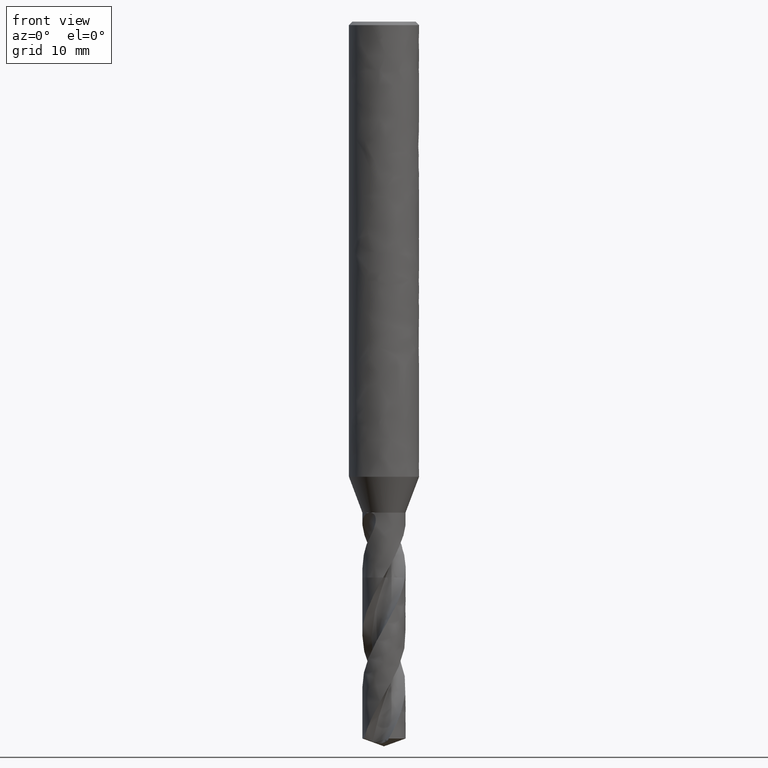
[diagram: clean part render]
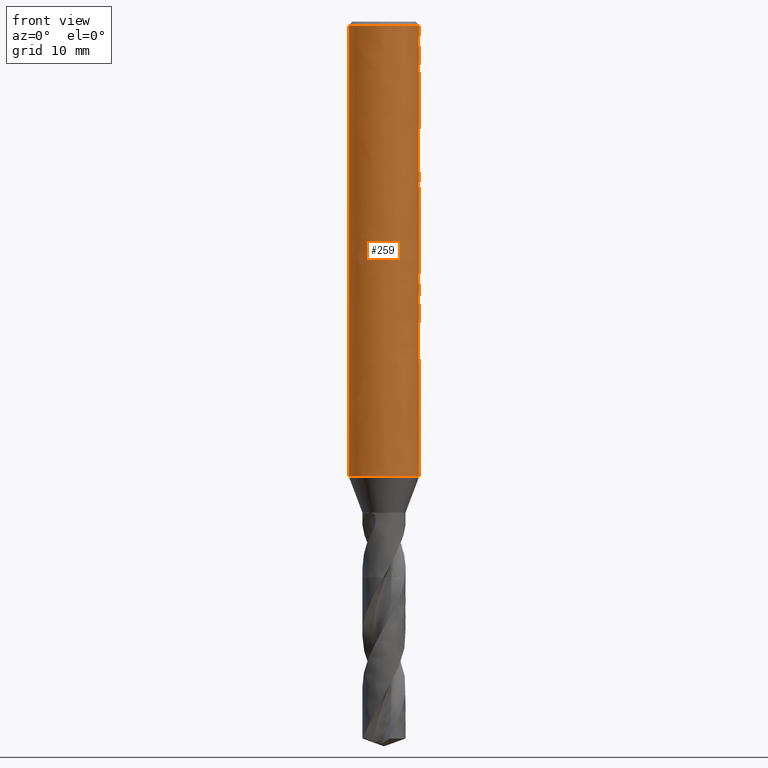
[diagram: same view with one face highlighted and labeled with its STEP entity id]
A machine part, front view. The second image highlights one B-rep face of the part: STEP entity #259.
In plain terms, the highlighted face is a freeform B-spline surface patch.
Its self-contained STEP definition (entity closure, byte-faithful):
#140 = VERTEX_POINT('', #141);
#141 = CARTESIAN_POINT('', (-3., 2.56783940845217E-15, -38.936));
#147 = EDGE_CURVE('', #140, #140, #148, .T.);
#148 = CIRCLE('', #149, 3.);
#149 = AXIS2_PLACEMENT_3D('', #150, #151, #152);
#150 = CARTESIAN_POINT('', (1.45986617244305E-31, 2.38414238858007E-15, -38.936));
#151 = DIRECTION('', (3.74939945665464E-33, 6.12323399573677E-17, -1.));
#152 = DIRECTION('', (-1., 6.12323399573677E-17, 0.));
#208 = VERTEX_POINT('', #209);
#209 = CARTESIAN_POINT('', (-3., 2.02066721859313E-16, -0.299999999999997));
#225 = EDGE_CURVE('', #208, #208, #226, .T.);
#226 = CIRCLE('', #227, 3.);
#227 = AXIS2_PLACEMENT_3D('', #228, #229, #230);
#228 = CARTESIAN_POINT('', (1.12481983699637E-33, 1.836970198721E-17, -0.299999999999997));
#229 = DIRECTION('', (3.74939945665464E-33, 6.12323399573677E-17, -1.));
#230 = DIRECTION('', (-1., 6.12323399573677E-17, 0.));
#259 = ADVANCED_FACE('', (#260, #271), #442, .T.);
#260 = FACE_OUTER_BOUND('', #261, .T.);
#261 = EDGE_LOOP('', (#262, #268, #269, #270));
#262 = ORIENTED_EDGE('', *, *, #263, .T.);
#263 = EDGE_CURVE('', #140, #208, #264, .T.);
#264 = LINE('', #265, #266);
#265 = CARTESIAN_POINT('', (-3., 2.56783940845217E-15, -38.936));
#266 = VECTOR('', #267, 38.636);
#267 = DIRECTION('', (0., -2.36577268659286E-15, 38.636));
#268 = ORIENTED_EDGE('', *, *, #225, .T.);
#269 = ORIENTED_EDGE('', *, *, #263, .F.);
#270 = ORIENTED_EDGE('', *, *, #147, .F.);
#271 = FACE_BOUND('', #272, .T.);
#272 = EDGE_LOOP('', (#273, #283, #361, #369));
#273 = ORIENTED_EDGE('', *, *, #274, .F.);
#274 = EDGE_CURVE('', #275, #277, #279, .T.);
#275 = VERTEX_POINT('', #276);
#276 = CARTESIAN_POINT('', (2.14242852856286, 2.1, -15.9));
#277 = VERTEX_POINT('', #278);
#278 = CARTESIAN_POINT('', (2.14242852856286, 2.1, -20.1));
#279 = LINE('', #280, #281);
#280 = CARTESIAN_POINT('', (2.14242852856286, 2.1, -15.9));
#281 = VECTOR('', #282, 4.2);
#282 = DIRECTION('', (0., 4.44089209850063E-16, -4.2));
#283 = ORIENTED_EDGE('', *, *, #284, .F.);
#284 = EDGE_CURVE('', #285, #275, #287, .T.);
#285 = VERTEX_POINT('', #286);
#286 = CARTESIAN_POINT('', (-2.14242852856285, 2.1, -15.9));
#287 = B_SPLINE_CURVE_WITH_KNOTS('', 3, (#288, #289, #290, #291, #292, #293, #294, #295, #296, #297, #298, #299, #300, #301, #302, #303, #304, #305, #306, #307, #308, #309, #310, #311, #312, #313, #314, #315, #316, #317, #318, #319, #320, #321, #322, #323, #324, #325, #326, #327, #328, #329, #330, #331, #332, #333, #334, #335, #336, #337, #338, #339, #340, #341, #342, #343, #344, #345, #346, #347, #348, #349, #350, #351, #352, #353, #354, #355, #356, #357, #358, #359, #360), .UNSPECIFIED., .F., .U., (4, 3, 3, 3, 3, 3, 3, 3, 3, 3, 3, 3, 3, 3, 3, 3, 3, 3, 3, 3, 3, 3, 3, 3, 4), (0., 0.226532141220106, 0.522486989651015, 0.818712617000362, 1.01613164123478, 1.21365653787485, 1.41130126070876, 1.60907935009336, 1.80700249001341, 2.00507870652317, 2.20331049885992, 2.40169339368014, 2.59896230886553, 2.79623122405091, 2.99461411887113, 3.19284591120788, 3.39092212771765, 3.5888452676377, 3.78662335702229, 3.98426807985621, 4.18179297649628, 4.37921200073069, 4.67543762808004, 4.97139247651095, 5.19792461773105), .UNSPECIFIED.);
#288 = CARTESIAN_POINT('', (-2.14242852856285, 2.1, -15.9));
#289 = CARTESIAN_POINT('', (-2.09966946167759, 2.14362297369035, -15.8556089394693));
#290 = CARTESIAN_POINT('', (-2.05511554936735, 2.1864112283916, -15.8120672951529));
#291 = CARTESIAN_POINT('', (-2.0087677833036, 2.22819478339795, -15.7695480406737));
#292 = CARTESIAN_POINT('', (-1.94821634893922, 2.28278326528933, -15.71399839793));
#293 = CARTESIAN_POINT('', (-1.88451279376244, 2.33573606973675, -15.6601132326456));
#294 = CARTESIAN_POINT('', (-1.81770907332823, 2.38661553768947, -15.6083379099064));
#295 = CARTESIAN_POINT('', (-1.75084423195188, 2.43754155695696, -15.5565152162052));
#296 = CARTESIAN_POINT('', (-1.6807436866328, 2.48648668451198, -15.5067082925553));
#297 = CARTESIAN_POINT('', (-1.60754910566601, 2.53294016369761, -15.4594368887067));
#298 = CARTESIAN_POINT('', (-1.5587687118729, 2.56389899941747, -15.4279329486004));
#299 = CARTESIAN_POINT('', (-1.5085561938224, 2.59378846644904, -15.3975172059771));
#300 = CARTESIAN_POINT('', (-1.45698599487322, 2.6224400490275, -15.3683611437249));
#301 = CARTESIAN_POINT('', (-1.40538813971894, 2.65110699695379, -15.3391894455811));
#302 = CARTESIAN_POINT('', (-1.35237136818211, 2.67856731294511, -15.311245625015));
#303 = CARTESIAN_POINT('', (-1.29804490816719, 2.7046403488045, -15.2847135109673));
#304 = CARTESIAN_POINT('', (-1.24368549163368, 2.7307292015695, -15.2581653015195));
#305 = CARTESIAN_POINT('', (-1.18794354651529, 2.75546251726231, -15.2329964966177));
#306 = CARTESIAN_POINT('', (-1.13097137564117, 2.77865142604832, -15.2093992916021));
#307 = CARTESIAN_POINT('', (-1.07396076113039, 2.80185598222798, -15.1857861636831));
#308 = CARTESIAN_POINT('', (-1.01563414958426, 2.82354738172838, -15.1637128351876));
#309 = CARTESIAN_POINT('', (-0.95619479969747, 2.84353503671602, -15.143373249704));
#310 = CARTESIAN_POINT('', (-0.89671185696602, 2.86353735065839, -15.1230187471597));
#311 = CARTESIAN_POINT('', (-0.836016614422421, 2.88186535336629, -15.1043680361057));
#312 = CARTESIAN_POINT('', (-0.774369168024389, 2.89833614192924, -15.087607239896));
#313 = CARTESIAN_POINT('', (-0.71267404260882, 2.91481966923584, -15.0708334806465));
#314 = CARTESIAN_POINT('', (-0.64991330506456, 2.92947198918526, -15.0559231715418));
#315 = CARTESIAN_POINT('', (-0.586405693294023, 2.94212990244693, -15.0430423854271));
#316 = CARTESIAN_POINT('', (-0.522848200475703, 2.95479775766609, -15.030151482303));
#317 = CARTESIAN_POINT('', (-0.458417641638556, 2.96549204170255, -15.0192688998049));
#318 = CARTESIAN_POINT('', (-0.393487032405311, 2.97408270821927, -15.010526974047));
#319 = CARTESIAN_POINT('', (-0.32850692971699, 2.98267992298454, -15.0017783847429));
#320 = CARTESIAN_POINT('', (-0.262890170542842, 2.98918754384691, -14.9951561816426));
#321 = CARTESIAN_POINT('', (-0.197052250671389, 2.99352140638837, -14.9907460110803));
#322 = CARTESIAN_POINT('', (-0.131584030526332, 2.99783093298788, -14.9863606049525));
#323 = CARTESIAN_POINT('', (-0.0657563050617958, 3., -14.9841533463251));
#324 = CARTESIAN_POINT('', (9.18485099360515E-17, 3., -14.9841533463251));
#325 = CARTESIAN_POINT('', (0.0657563050617961, 3., -14.9841533463251));
#326 = CARTESIAN_POINT('', (0.131584030526332, 2.99783093298788, -14.9863606049525));
#327 = CARTESIAN_POINT('', (0.197052250671389, 2.99352140638837, -14.9907460110803));
#328 = CARTESIAN_POINT('', (0.262890170542842, 2.98918754384691, -14.9951561816426));
#329 = CARTESIAN_POINT('', (0.328506929716991, 2.98267992298454, -15.0017783847429));
#330 = CARTESIAN_POINT('', (0.393487032405312, 2.97408270821927, -15.010526974047));
#331 = CARTESIAN_POINT('', (0.458417641638557, 2.96549204170255, -15.0192688998049));
#332 = CARTESIAN_POINT('', (0.522848200475705, 2.95479775766609, -15.030151482303));
#333 = CARTESIAN_POINT('', (0.586405693294026, 2.94212990244693, -15.0430423854271));
#334 = CARTESIAN_POINT('', (0.649913305064562, 2.92947198918526, -15.0559231715418));
#335 = CARTESIAN_POINT('', (0.712674042608824, 2.91481966923584, -15.0708334806465));
#336 = CARTESIAN_POINT('', (0.774369168024393, 2.89833614192924, -15.087607239896));
#337 = CARTESIAN_POINT('', (0.836016614422424, 2.88186535336629, -15.1043680361057));
#338 = CARTESIAN_POINT('', (0.896711856966021, 2.86353735065839, -15.1230187471597));
#339 = CARTESIAN_POINT('', (0.95619479969747, 2.84353503671602, -15.143373249704));
#340 = CARTESIAN_POINT('', (1.01563414958426, 2.82354738172838, -15.1637128351876));
#341 = CARTESIAN_POINT('', (1.07396076113039, 2.80185598222798, -15.1857861636831));
#342 = CARTESIAN_POINT('', (1.13097137564117, 2.77865142604832, -15.2093992916021));
#343 = CARTESIAN_POINT('', (1.18794354651529, 2.75546251726231, -15.2329964966177));
#344 = CARTESIAN_POINT('', (1.24368549163368, 2.7307292015695, -15.2581653015195));
#345 = CARTESIAN_POINT('', (1.29804490816719, 2.7046403488045, -15.2847135109673));
#346 = CARTESIAN_POINT('', (1.35237136818211, 2.67856731294511, -15.311245625015));
#347 = CARTESIAN_POINT('', (1.40538813971894, 2.65110699695379, -15.3391894455812));
#348 = CARTESIAN_POINT('', (1.45698599487322, 2.6224400490275, -15.3683611437249));
#349 = CARTESIAN_POINT('', (1.5085561938224, 2.59378846644904, -15.3975172059771));
#350 = CARTESIAN_POINT('', (1.55876871187291, 2.56389899941746, -15.4279329486004));
#351 = CARTESIAN_POINT('', (1.60754910566601, 2.53294016369761, -15.4594368887067));
#352 = CARTESIAN_POINT('', (1.6807436866328, 2.48648668451198, -15.5067082925553));
#353 = CARTESIAN_POINT('', (1.75084423195188, 2.43754155695695, -15.5565152162052));
#354 = CARTESIAN_POINT('', (1.81770907332824, 2.38661553768947, -15.6083379099064));
#355 = CARTESIAN_POINT('', (1.88451279376245, 2.33573606973674, -15.6601132326456));
#356 = CARTESIAN_POINT('', (1.94821634893922, 2.28278326528933, -15.71399839793));
#357 = CARTESIAN_POINT('', (2.0087677833036, 2.22819478339795, -15.7695480406738));
#358 = CARTESIAN_POINT('', (2.05511554936736, 2.1864112283916, -15.8120672951529));
#359 = CARTESIAN_POINT('', (2.09966946167759, 2.14362297369034, -15.8556089394693));
#360 = CARTESIAN_POINT('', (2.14242852856286, 2.1, -15.9));
#361 = ORIENTED_EDGE('', *, *, #362, .T.);
#362 = EDGE_CURVE('', #285, #363, #365, .T.);
#363 = VERTEX_POINT('', #364);
#364 = CARTESIAN_POINT('', (-2.14242852856285, 2.1, -20.1));
#365 = LINE('', #366, #367);
#366 = CARTESIAN_POINT('', (-2.14242852856285, 2.1, -15.9));
#367 = VECTOR('', #368, 4.2);
#368 = DIRECTION('', (0., 0., -4.2));
#369 = ORIENTED_EDGE('', *, *, #370, .T.);
#370 = EDGE_CURVE('', #363, #277, #371, .T.);
#371 = B_SPLINE_CURVE_WITH_KNOTS('', 3, (#372, #373, #374, #375, #376, #377, #378, #379, #380, #381, #382, #383, #384, #385, #386, #387, #388, #389, #390, #391, #392, #393, #394, #395, #396, #397, #398, #399, #400, #401, #402, #403, #404, #405, #406, #407, #408, #409, #410, #411, #412, #413, #414, #415, #416, #417, #418, #419, #420, #421, #422, #423, #424, #425, #426, #427, #428, #429, #430, #431, #432, #433, #434, #435, #436, #437, #438, #439, #440, #441), .UNSPECIFIED., .F., .U., (4, 3, 3, 3, 3, 3, 3, 3, 3, 3, 3, 3, 3, 3, 3, 3, 3, 3, 3, 3, 3, 3, 3, 4), (0., 0.29566074741977, 0.591176839852676, 0.886518626925896, 1.18164841836716, 1.47652016794506, 1.67307726230278, 1.86952243409268, 2.06584587187348, 2.26204020012183, 2.39294997035299, 2.5987955185311, 2.79606443371649, 2.99444732853671, 3.19267912087345, 3.39075533738322, 3.58867847730327, 3.78645656668786, 3.98410128952178, 4.18162618616185, 4.37904521039627, 4.67527083774562, 4.97122568617652, 5.19775782739663), .UNSPECIFIED.);
#372 = CARTESIAN_POINT('', (-2.14242852856285, 2.1, -20.1));
#373 = CARTESIAN_POINT('', (-2.08662109388193, 2.15693497150777, -20.157937447925));
#374 = CARTESIAN_POINT('', (-2.02774367313634, 2.21245994000831, -20.2144400663657));
#375 = CARTESIAN_POINT('', (-1.96580397010841, 2.26618947820047, -20.269115641651));
#376 = CARTESIAN_POINT('', (-1.90389457170158, 2.31989272867704, -20.3237644663626));
#377 = CARTESIAN_POINT('', (-1.83882161539949, 2.371890809005, -20.3766780973248));
#378 = CARTESIAN_POINT('', (-1.77065397516674, 2.42173171516323, -20.4273965719039));
#379 = CARTESIAN_POINT('', (-1.70252654250763, 2.47154322347377, -20.4780851310158));
#380 = CARTESIAN_POINT('', (-1.63117078258686, 2.51929762113425, -20.5266803591222));
#381 = CARTESIAN_POINT('', (-1.55675381487312, 2.56447217958794, -20.572650323779));
#382 = CARTESIAN_POINT('', (-1.48239026348173, 2.60961431185107, -20.6185872913044));
#383 = CARTESIAN_POINT('', (-1.40478985624159, 2.6522855246488, -20.6620098329141));
#384 = CARTESIAN_POINT('', (-1.32426732289553, 2.69189822569708, -20.7023200103564));
#385 = CARTESIAN_POINT('', (-1.24381519309784, 2.73147629203384, -20.7425949432603));
#386 = CARTESIAN_POINT('', (-1.16021288035591, 2.76811040114363, -20.7798740835253));
#387 = CARTESIAN_POINT('', (-1.07398043712975, 2.80117225829876, -20.8135180737918));
#388 = CARTESIAN_POINT('', (-1.01649918128153, 2.82321079737816, -20.8359446540893));
#389 = CARTESIAN_POINT('', (-0.957748596561568, 2.84370285567261, -20.856797524107));
#390 = CARTESIAN_POINT('', (-0.897945836518629, 2.86246279882885, -20.8758877809545));
#391 = CARTESIAN_POINT('', (-0.838177129067324, 2.88121205979111, -20.8949671675225));
#392 = CARTESIAN_POINT('', (-0.777257254947386, 2.89826163823775, -20.9123169445968));
#393 = CARTESIAN_POINT('', (-0.715458762567487, 2.91343761887321, -20.9277601346871));
#394 = CARTESIAN_POINT('', (-0.653698565749474, 2.92860419519017, -20.9431937548733));
#395 = CARTESIAN_POINT('', (-0.590947680355501, 2.94192632660259, -20.9567504542887));
#396 = CARTESIAN_POINT('', (-0.527533495262699, 2.9532538684265, -20.9682774445929));
#397 = CARTESIAN_POINT('', (-0.46416101367652, 2.96457396084119, -20.9797968543232));
#398 = CARTESIAN_POINT('', (-0.400001379736572, 2.97392352783086, -20.989311042813));
#399 = CARTESIAN_POINT('', (-0.335429955765133, 2.98118881400953, -20.9967042517405));
#400 = CARTESIAN_POINT('', (-0.292344967778633, 2.9860365430586, -21.0016373366599));
#401 = CARTESIAN_POINT('', (-0.249027925527354, 2.98996321515988, -21.0056331472199));
#402 = CARTESIAN_POINT('', (-0.20559941433194, 2.99294652154468, -21.0086689818526));
#403 = CARTESIAN_POINT('', (-0.137311419648321, 2.99763754145158, -21.0134425983904));
#404 = CARTESIAN_POINT('', (-0.0686151827260356, 3., -21.0158466536749));
#405 = CARTESIAN_POINT('', (9.18485099360516E-17, 3., -21.0158466536749));
#406 = CARTESIAN_POINT('', (0.065756305061796, 3., -21.0158466536749));
#407 = CARTESIAN_POINT('', (0.131584030526332, 2.99783093298788, -21.0136393950475));
#408 = CARTESIAN_POINT('', (0.197052250671389, 2.99352140638837, -21.0092539889197));
#409 = CARTESIAN_POINT('', (0.262890170542842, 2.98918754384691, -21.0048438183574));
#410 = CARTESIAN_POINT('', (0.328506929716991, 2.98267992298454, -20.9982216152571));
#411 = CARTESIAN_POINT('', (0.393487032405312, 2.97408270821927, -20.989473025953));
#412 = CARTESIAN_POINT('', (0.458417641638557, 2.96549204170255, -20.9807311001951));
#413 = CARTESIAN_POINT('', (0.522848200475705, 2.95479775766609, -20.969848517697));
#414 = CARTESIAN_POINT('', (0.586405693294025, 2.94212990244693, -20.9569576145729));
#415 = CARTESIAN_POINT('', (0.649913305064562, 2.92947198918526, -20.9440768284582));
#416 = CARTESIAN_POINT('', (0.712674042608821, 2.91481966923584, -20.9291665193535));
#417 = CARTESIAN_POINT('', (0.774369168024391, 2.89833614192924, -20.912392760104));
#418 = CARTESIAN_POINT('', (0.836016614422422, 2.88186535336629, -20.8956319638943));
#419 = CARTESIAN_POINT('', (0.89671185696602, 2.86353735065839, -20.8769812528403));
#420 = CARTESIAN_POINT('', (0.956194799697469, 2.84353503671602, -20.856626750296));
#421 = CARTESIAN_POINT('', (1.01563414958426, 2.82354738172838, -20.8362871648124));
#422 = CARTESIAN_POINT('', (1.07396076113039, 2.80185598222798, -20.8142138363169));
#423 = CARTESIAN_POINT('', (1.13097137564117, 2.77865142604833, -20.7906007083979));
#424 = CARTESIAN_POINT('', (1.18794354651529, 2.75546251726231, -20.7670035033823));
#425 = CARTESIAN_POINT('', (1.24368549163368, 2.7307292015695, -20.7418346984805));
#426 = CARTESIAN_POINT('', (1.29804490816719, 2.7046403488045, -20.7152864890327));
#427 = CARTESIAN_POINT('', (1.35237136818211, 2.67856731294511, -20.688754374985));
#428 = CARTESIAN_POINT('', (1.40538813971895, 2.65110699695379, -20.6608105544189));
#429 = CARTESIAN_POINT('', (1.45698599487322, 2.6224400490275, -20.6316388562751));
#430 = CARTESIAN_POINT('', (1.5085561938224, 2.59378846644904, -20.6024827940229));
#431 = CARTESIAN_POINT('', (1.55876871187291, 2.56389899941746, -20.5720670513996));
#432 = CARTESIAN_POINT('', (1.60754910566601, 2.53294016369761, -20.5405631112933));
#433 = CARTESIAN_POINT('', (1.6807436866328, 2.48648668451198, -20.4932917074447));
#434 = CARTESIAN_POINT('', (1.75084423195188, 2.43754155695696, -20.4434847837948));
#435 = CARTESIAN_POINT('', (1.81770907332823, 2.38661553768947, -20.3916620900936));
#436 = CARTESIAN_POINT('', (1.88451279376245, 2.33573606973675, -20.3398867673544));
#437 = CARTESIAN_POINT('', (1.94821634893922, 2.28278326528933, -20.28600160207));
#438 = CARTESIAN_POINT('', (2.0087677833036, 2.22819478339795, -20.2304519593262));
#439 = CARTESIAN_POINT('', (2.05511554936736, 2.1864112283916, -20.1879327048471));
#440 = CARTESIAN_POINT('', (2.09966946167759, 2.14362297369034, -20.1443910605307));
#441 = CARTESIAN_POINT('', (2.14242852856286, 2.1, -20.1));
#442 = (
   BOUNDED_SURFACE ()
   B_SPLINE_SURFACE (1, 2, ((#443, #444, #445, #446, #447, #448, #449, #450, #451), (#452, #453, #454, #455, #456, #457, #458, #459, #460)), .UNSPECIFIED., .F., .T., .U.)
   B_SPLINE_SURFACE_WITH_KNOTS ((2, 2), (3, 2, 2, 2, 3), (0., 1.), (0., 4.71238898038469, 9.42477796076938, 14.1371669411541, 18.8495559215388), .UNSPECIFIED.)
   GEOMETRIC_REPRESENTATION_ITEM ()
   RATIONAL_B_SPLINE_SURFACE (((1., 0.707106781186548, 1., 0.707106781186548, 1., 0.707106781186548, 1., 0.707106781186548, 1.), (1., 0.707106781186548, 1., 0.707106781186548, 1., 0.707106781186548, 1., 0.707106781186548, 1.)))
   REPRESENTATION_ITEM ('')
   SURFACE ()
);
#443 = CARTESIAN_POINT('', (-3., 2.56783940845217E-15, -38.936));
#444 = CARTESIAN_POINT('', (-3., 3., -38.936));
#445 = CARTESIAN_POINT('', (1.23259516440783E-31, 3., -38.936));
#446 = CARTESIAN_POINT('', (3., 3., -38.936));
#447 = CARTESIAN_POINT('', (3., 2.56783940845217E-15, -38.936));
#448 = CARTESIAN_POINT('', (3., -3., -38.936));
#449 = CARTESIAN_POINT('', (3.67394039744206E-16, -3., -38.936));
#450 = CARTESIAN_POINT('', (-3., -3., -38.936));
#451 = CARTESIAN_POINT('', (-3., 2.56783940845217E-15, -38.936));
#452 = CARTESIAN_POINT('', (-3., 2.02066721859313E-16, -0.299999999999997));
#453 = CARTESIAN_POINT('', (-3., 3., -0.299999999999997));
#454 = CARTESIAN_POINT('', (0., 3., -0.299999999999997));
#455 = CARTESIAN_POINT('', (3., 3., -0.299999999999997));
#456 = CARTESIAN_POINT('', (3., 2.02066721859313E-16, -0.299999999999997));
#457 = CARTESIAN_POINT('', (3., -3., -0.299999999999997));
#458 = CARTESIAN_POINT('', (3.67394039744206E-16, -3., -0.299999999999997));
#459 = CARTESIAN_POINT('', (-3., -3., -0.299999999999997));
#460 = CARTESIAN_POINT('', (-3., 2.02066721859313E-16, -0.299999999999997));